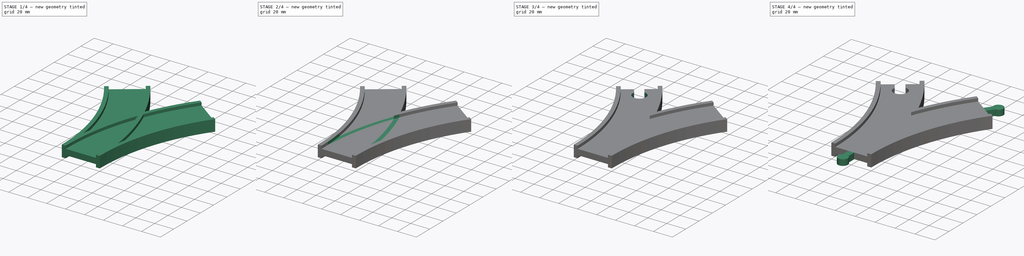
[diagram: build sequence overview — one tinted view per stage of 4, left to right]
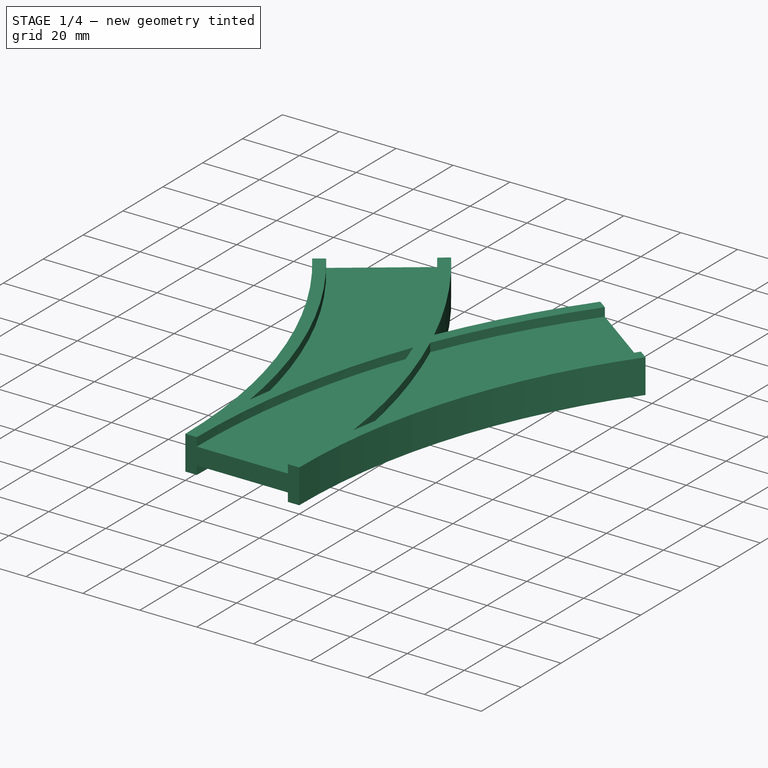
[diagram: stage 1 of 4 — iso view after this stage's code; geometry added in this stage tinted green]
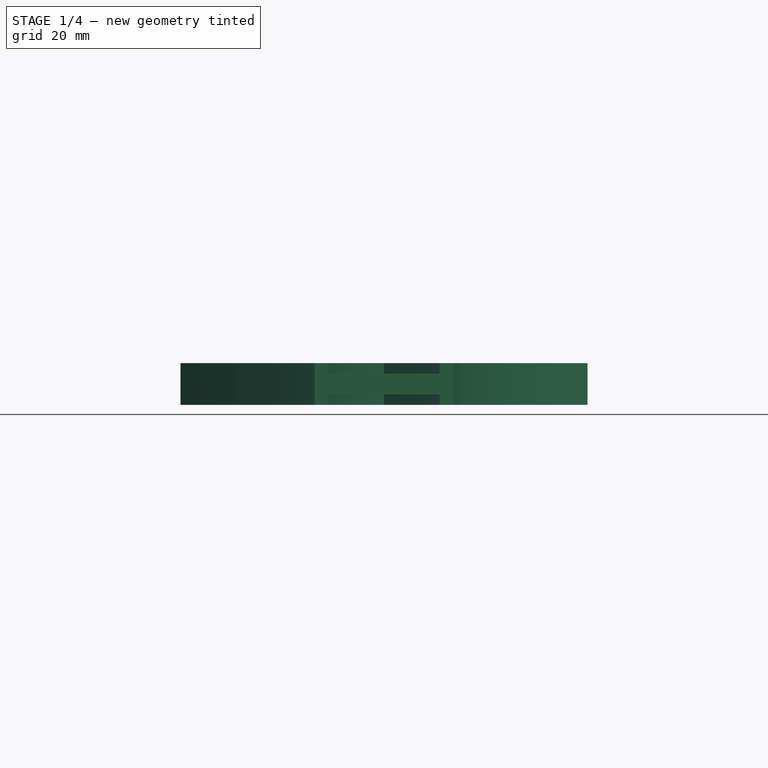
[diagram: stage 1 of 4 — front view after this stage's code; geometry added in this stage tinted green]
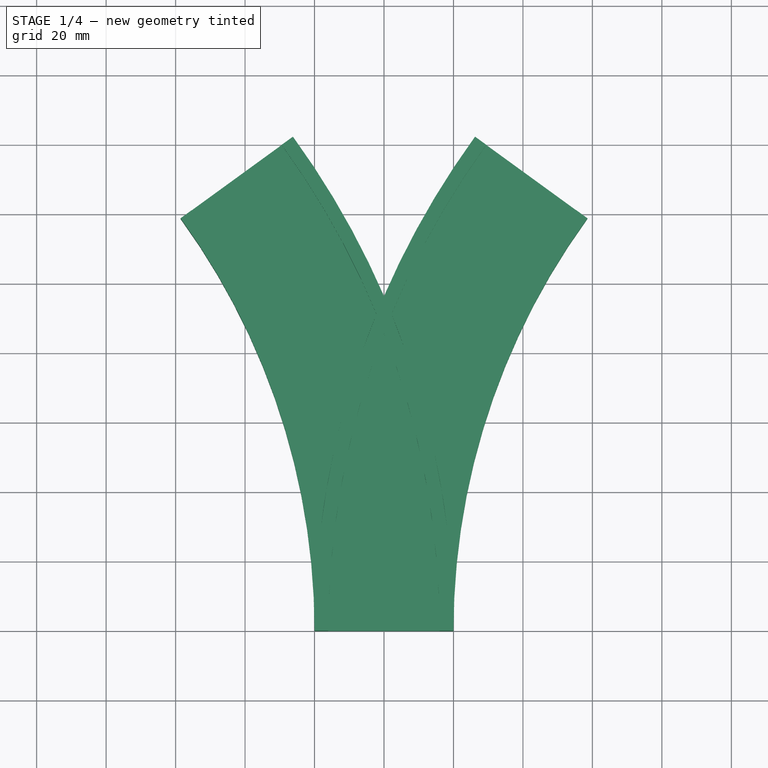
[diagram: stage 1 of 4 — top view after this stage's code; geometry added in this stage tinted green]
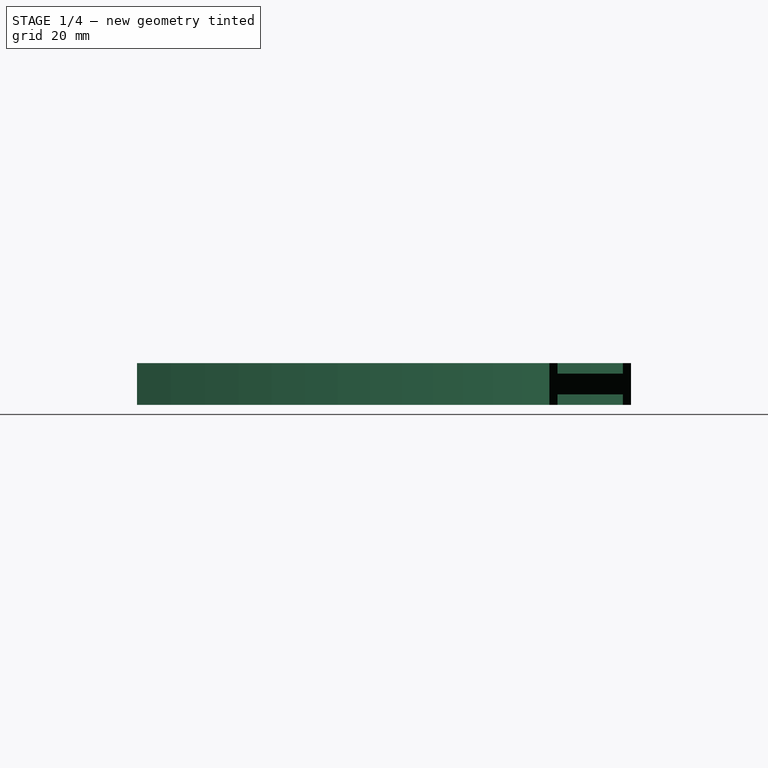
[diagram: stage 1 of 4 — right view after this stage's code; geometry added in this stage tinted green]
FCSTD DOCUMENT  (FreeCAD 0.19R24291 (Git))
Label: 222R 36 degree road split Y MFM mk1
License: All rights reserved
LicenseURL: http://en.wikipedia.org/wiki/All_rights_reserved
objects: PartDesign::ShapeBinder×8, Sketcher::SketchObject×7, PartDesign::Body×3, PartDesign::AdditivePipe×2, PartDesign::Point×2, PartDesign::Pad×2, PartDesign::SubtractivePipe×2, PartDesign::Mirrored×2, PartDesign::Pocket×1
note: 36 computed .brp shape members not serialized (recipe doc carries the construction recipe); baked Part::Feature solids carry a one-line shape summary decoded from their .brp

FEATURE [Sketcher::SketchObject] Sketch  label="guide1"
  FullyConstrained = true
  MapMode = 5
  Support = -> [XY_Plane]
  sketch-geometry (3):
    g0: ArcOfCircle CenterX=-222 CenterY=0 CenterZ=0 NormalX=0 NormalY=0 NormalZ=1 AngleXU=0 Radius=222 StartAngle=0 EndAngle=0.628319
    g1: LineSegment StartX=0 StartY=0 StartZ=0 EndX=-222 EndY=0 EndZ=0
    g2: LineSegment StartX=-222 StartY=0 StartZ=0 EndX=-42.3982 EndY=130.488 EndZ=0
  constraints (8):
    c: Radius(g0) = 222
    c: Coincident(g1,g-1)
    c: Coincident(g1,g0)
    c: Horizontal(g1)
    c: Coincident(g2,g0)
    c: Angle(g1,g2) = 0.628319
    c: Coincident(g0,g1)
    c: Coincident(g0,g2)
FEATURE [Sketcher::SketchObject] Sketch001  label="guide2"
  FullyConstrained = true
  MapMode = 5
  Support = -> [XY_Plane]
  sketch-geometry (3):
    g0: ArcOfCircle CenterX=222 CenterY=2.72e-14 CenterZ=0 NormalX=0 NormalY=0 NormalZ=1 AngleXU=0 Radius=222 StartAngle=2.51327 EndAngle=3.14159
    g1: LineSegment StartX=0 StartY=2.72e-14 StartZ=0 EndX=222 EndY=2.72e-14 EndZ=0
    g2: LineSegment StartX=222 StartY=2.72e-14 StartZ=0 EndX=42.3982 EndY=130.488 EndZ=0
  constraints (8):
    c: Radius(g0) = 222
    c: Coincident(g1,g-1)
    c: Coincident(g1,g0)
    c: Coincident(g2,g0)
    c: Horizontal(g1)
    c: Angle(g2,g1) = 0.628319
    c: Coincident(g0,g2)
    c: Coincident(g0,g1)
FEATURE [Sketcher::SketchObject] Sketch002  label="profile"
  FullyConstrained = true
  MapMode = 5
  Placement = pos=(0,0,0) rot=(1,0,0;1.5708rad)
  Support = -> [XZ_Plane]
  sketch-geometry (28):
    g0: LineSegment StartX=-20 StartY=6 StartZ=0 EndX=-20 EndY=-6 EndZ=0
    g1: LineSegment StartX=-20 StartY=-6 StartZ=0 EndX=-16 EndY=-6 EndZ=0
    g2: LineSegment StartX=-16 StartY=-6 StartZ=0 EndX=-16 EndY=-3 EndZ=0
    g3: LineSegment StartX=-16 StartY=-3 StartZ=0 EndX=-9 EndY=-3 EndZ=0
    g4: LineSegment StartX=-9 StartY=-3 StartZ=0 EndX=-9 EndY=-6 EndZ=0
    g5: LineSegment StartX=-9 StartY=-6 StartZ=0 EndX=9 EndY=-6 EndZ=0
    g6: LineSegment StartX=9 StartY=-6 StartZ=0 EndX=9 EndY=-3 EndZ=0
    g7: LineSegment StartX=9 StartY=-3 StartZ=0 EndX=16 EndY=-3 EndZ=0
    g8: LineSegment StartX=16 StartY=-3 StartZ=0 EndX=16 EndY=-6 EndZ=0
    g9: LineSegment StartX=16 StartY=-6 StartZ=0 EndX=20 EndY=-6 EndZ=0
    g10: LineSegment StartX=20 StartY=-6 StartZ=0 EndX=20 EndY=6 EndZ=0
    g11: LineSegment StartX=20 StartY=6 StartZ=0 EndX=16 EndY=6 EndZ=0
    g12: LineSegment StartX=16 StartY=6 StartZ=0 EndX=16 EndY=3 EndZ=0
    g13: LineSegment StartX=16 StartY=3 StartZ=0 EndX=9 EndY=3 EndZ=0
    g14: LineSegment StartX=9 StartY=3 StartZ=0 EndX=9 EndY=6 EndZ=0
    g15: LineSegment StartX=9 StartY=6 StartZ=0 EndX=-9 EndY=6 EndZ=0
    g16: LineSegment StartX=-9 StartY=6 StartZ=0 EndX=-9 EndY=3 EndZ=0
    g17: LineSegment StartX=-9 StartY=3 StartZ=0 EndX=-16 EndY=3 EndZ=0
    g18: LineSegment StartX=-16 StartY=3 StartZ=0 EndX=-16 EndY=6 EndZ=0
    g19: LineSegment StartX=-16 StartY=6 StartZ=0 EndX=-20 EndY=6 EndZ=0
    g20: LineSegment StartX=9 StartY=6 StartZ=0 EndX=16 EndY=6 EndZ=0
    g21: LineSegment StartX=-9 StartY=6 StartZ=0 EndX=-16 EndY=6 EndZ=0
    g22: LineSegment StartX=-16 StartY=-6 StartZ=0 EndX=-9 EndY=-6 EndZ=0
    g23: LineSegment StartX=16 StartY=-3 StartZ=0 EndX=16 EndY=3 EndZ=0
    g24: LineSegment StartX=-9 StartY=3 StartZ=0 EndX=9 EndY=3 EndZ=0
    g25: LineSegment StartX=-9 StartY=-3 StartZ=0 EndX=9 EndY=-3 EndZ=0
    g26: LineSegment StartX=-20 StartY=6 StartZ=0 EndX=20 EndY=-6 EndZ=0
    g27: LineSegment StartX=-20 StartY=-6 StartZ=0 EndX=20 EndY=6 EndZ=0
  constraints (76):
    c: Coincident(g1,g0)
    c: Horizontal(g1)
    c: Coincident(g2,g1)
    c: Vertical(g2)
    c: Coincident(g3,g2)
    c: Horizontal(g3)
    c: Coincident(g4,g3)
    c: Coincident(g5,g4)
    c: Horizontal(g5)
    c: Coincident(g6,g5)
    c: Coincident(g7,g6)
    c: Horizontal(g7)
    c: Coincident(g8,g7)
    c: Coincident(g9,g8)
    c: Coincident(g10,g9)
    c: Coincident(g11,g10)
    c: Coincident(g12,g11)
    c: Coincident(g13,g12)
    c: Coincident(g14,g13)
    c: Vertical(g14)
    c: Coincident(g15,g14)
    c: Coincident(g16,g15)
    c: Coincident(g17,g16)
    c: Horizontal(g17)
    c: Coincident(g18,g17)
    c: Vertical(g18)
    c: Coincident(g19,g18)
    c: Coincident(g19,g0)
    c: Horizontal(g19)
    c: Horizontal(g15)
    c: Horizontal(g13)
    c: Horizontal(g11)
    c: Horizontal(g9)
    c: Vertical(g0)
    c: Vertical(g16)
    c: Vertical(g12)
    c: Vertical(g10)
    c: Vertical(g8)
    c: Vertical(g6)
    c: Vertical(g4)
    c: Equal(g0,g10)
    c: Equal(g3,g17)
    c: Equal(g3,g13)
    c: Equal(g3,g7)
    c: Equal(g5,g15)
    c: DistanceY(g0,g0) = 12
    c: DistanceX(g1,g1) = 4
    c: Equal(g1,g9)
    c: DistanceX(g3,g3) = 7
    c: DistanceX(g5,g5) = 18
    c: Coincident(g20,g14)
    c: Coincident(g20,g11)
    c: Coincident(g21,g15)
    c: Coincident(g21,g18)
    c: Coincident(g22,g1)
    c: Coincident(g22,g4)
    c: Horizontal(g22)
    c: Horizontal(g21)
    c: Horizontal(g20)
    c: Coincident(g23,g7)
    c: Coincident(g23,g12)
    c: Vertical(g23)
    c: DistanceY(g8,g7) = 3
    c: DistanceY(g7,g12) = 6
    c: Coincident(g24,g16)
    c: Coincident(g24,g13)
    c: Horizontal(g24)
    c: Coincident(g25,g3)
    c: Coincident(g25,g6)
    c: Horizontal(g25)
    c: Coincident(g26,g0)
    c: Coincident(g26,g9)
    c: Coincident(g27,g0)
    c: Coincident(g27,g10)
    c: PointOnObject(g-1,g26)
    c: PointOnObject(g-1,g27)
FEATURE [PartDesign::AdditivePipe] AdditivePipe
  AuxilleryCurvelinear = true
  AuxillerySpineTangent = false
  Binormal = (0,0,0)
  Mode = 0
  Placement = pos=(0,0,0) rot=(1,0,0;1.5708rad)
  Profile = -> Sketch002
  Spine = -> Sketch
  SpineTangent = false
  Transformation = 0
  Transition = 0
FEATURE [PartDesign::AdditivePipe] AdditivePipe001
  AuxilleryCurvelinear = true
  AuxillerySpineTangent = false
  BaseFeature = -> AdditivePipe
  Binormal = (0,0,0)
  Mode = 0
  Placement = pos=(0,0,0) rot=(1,0,0;1.5708rad)
  Profile = -> Sketch002
  Spine = -> Sketch001
  SpineTangent = false
  Transformation = 0
  Transition = 0
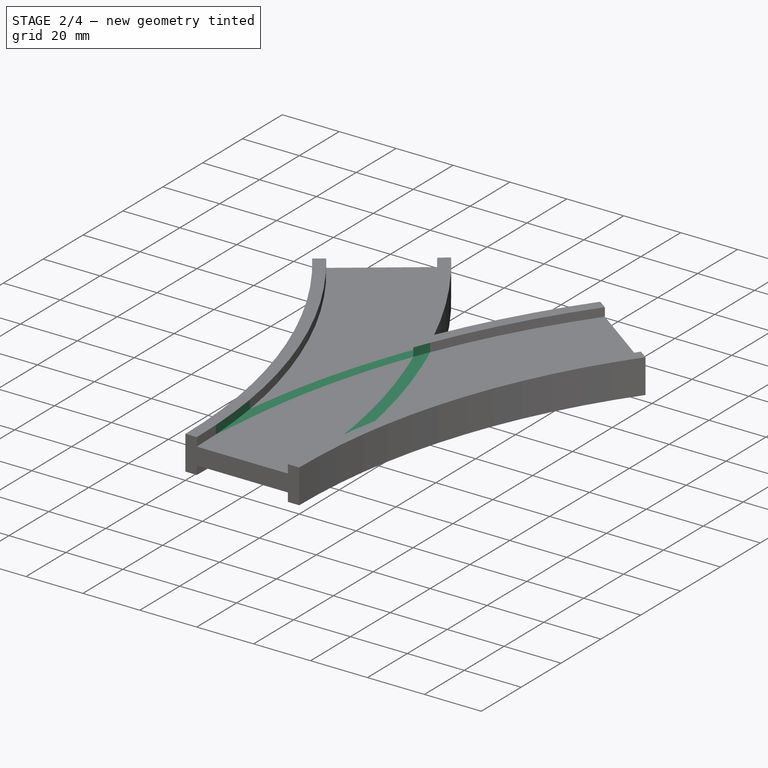
[diagram: stage 2 of 4 — iso view after this stage's code; geometry added in this stage tinted green]
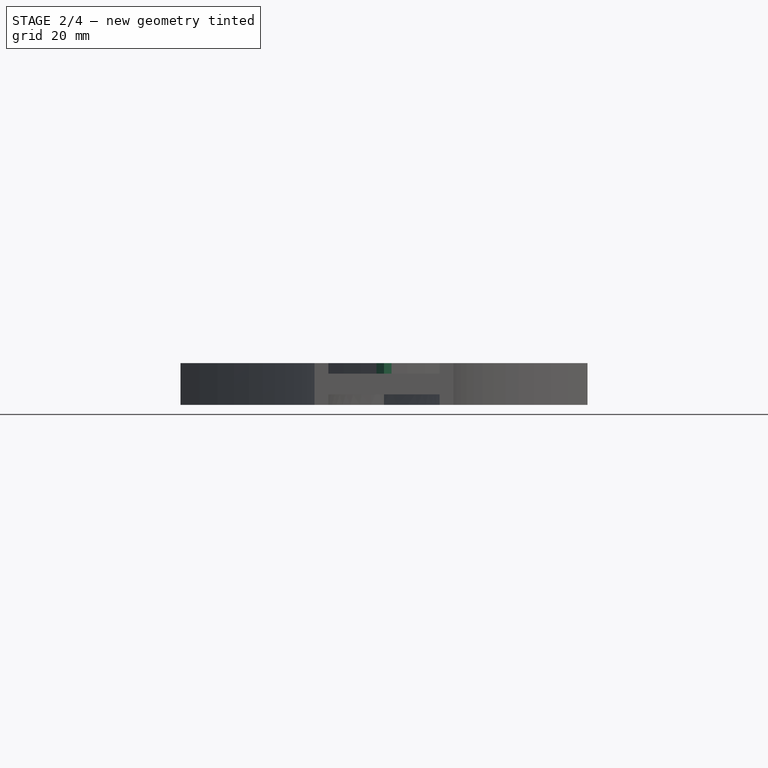
[diagram: stage 2 of 4 — front view after this stage's code; geometry added in this stage tinted green]
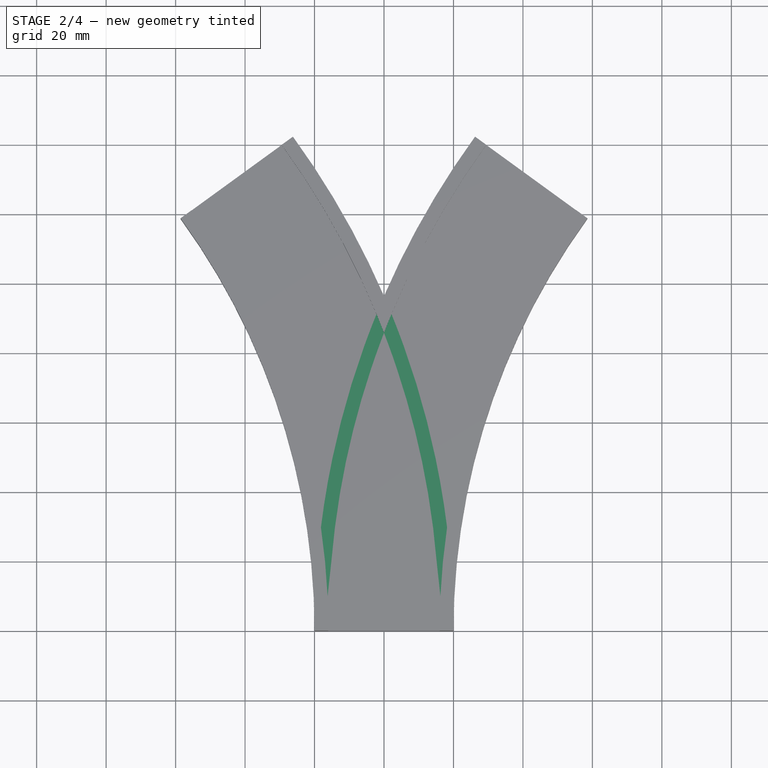
[diagram: stage 2 of 4 — top view after this stage's code; geometry added in this stage tinted green]
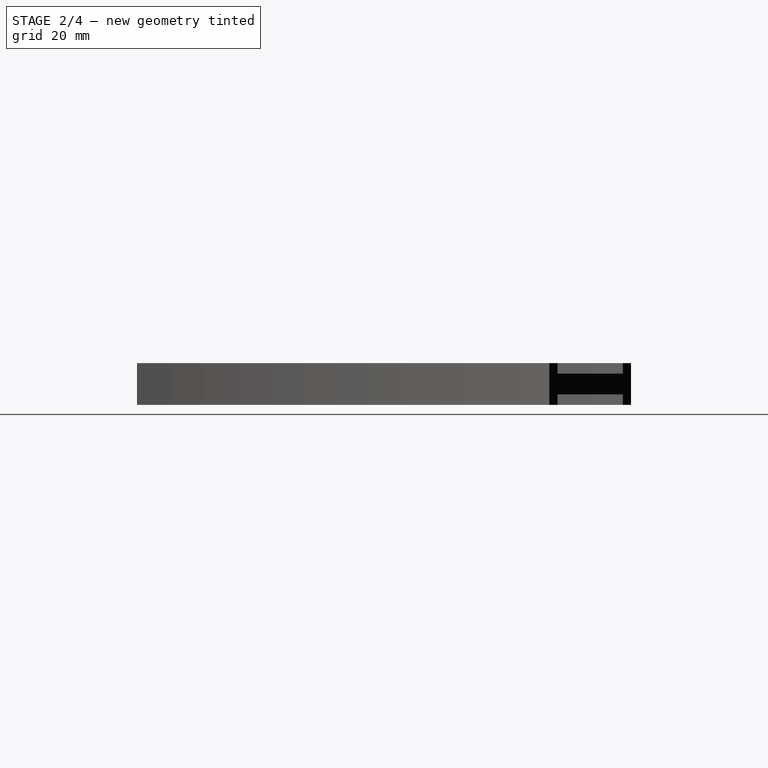
[diagram: stage 2 of 4 — right view after this stage's code; geometry added in this stage tinted green]
FEATURE [PartDesign::Body] Body002  label="male3"
  Group = -> [DatumPoint001,CopySubtractivePipe007004,CopySubtractivePipe007005,CopySubtractivePipe007006,CopySubtractivePipe007007,Sketch011,Pad001]
  Origin = -> Origin002
  Tip = -> Pad001
FEATURE [Sketcher::SketchObject] Sketch013  label="road cut top"
  ExternalGeometry = -> [AdditivePipe001]
  FullyConstrained = true
  MapMode = 5
  Placement = pos=(0,0,0) rot=(1,0,0;1.5708rad)
  Support = -> [AdditivePipe001]
  sketch-geometry (4):
    g0: LineSegment StartX=-16 StartY=3 StartZ=0 EndX=16 EndY=3 EndZ=0
    g1: LineSegment StartX=16 StartY=3 StartZ=0 EndX=16 EndY=6 EndZ=0
    g2: LineSegment StartX=16 StartY=6 StartZ=0 EndX=-16 EndY=6 EndZ=0
    g3: LineSegment StartX=-16 StartY=6 StartZ=0 EndX=-16 EndY=3 EndZ=0
  constraints (8):
    c: Coincident(g0,g-3)
    c: Coincident(g0,g-4)
    c: Coincident(g1,g0)
    c: Coincident(g1,g-4)
    c: Coincident(g2,g1)
    c: Coincident(g2,g-3)
    c: Coincident(g3,g2)
    c: Coincident(g3,g0)
FEATURE [PartDesign::SubtractivePipe] SubtractivePipe
  AuxilleryCurvelinear = true
  AuxillerySpineTangent = false
  BaseFeature = -> AdditivePipe001
  Binormal = (0,0,0)
  Mode = 0
  Placement = pos=(0,0,0) rot=(1,0,0;1.5708rad)
  Profile = -> Sketch013
  Spine = -> Sketch
  SpineTangent = false
  Transformation = 0
  Transition = 0
FEATURE [PartDesign::SubtractivePipe] SubtractivePipe001
  AuxilleryCurvelinear = true
  AuxillerySpineTangent = false
  BaseFeature = -> SubtractivePipe
  Binormal = (0,0,0)
  Mode = 0
  Placement = pos=(0,0,0) rot=(1,0,0;1.5708rad)
  Profile = -> Sketch013
  Spine = -> Sketch001
  SpineTangent = false
  Transformation = 0
  Transition = 0
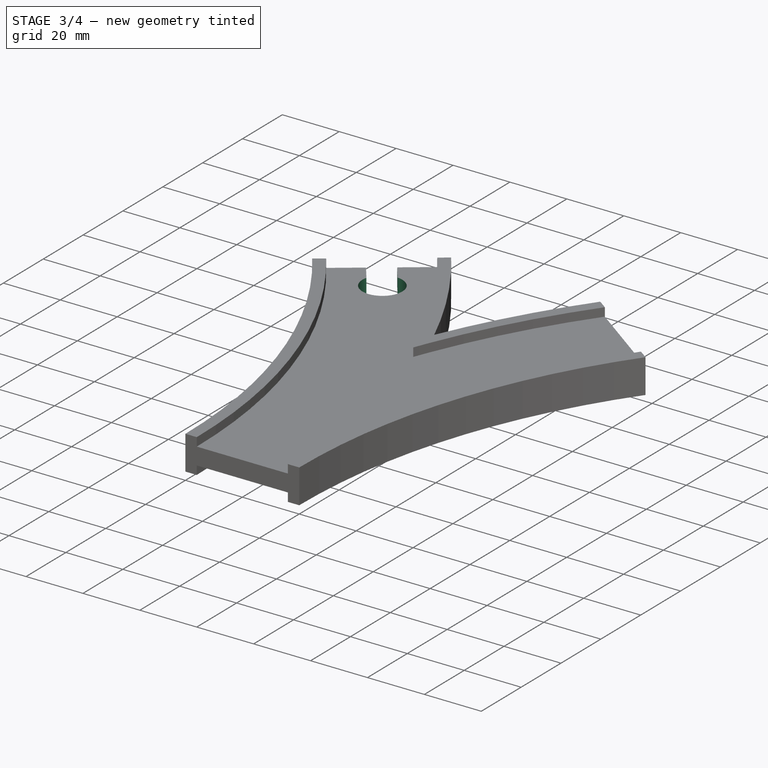
[diagram: stage 3 of 4 — iso view after this stage's code; geometry added in this stage tinted green]
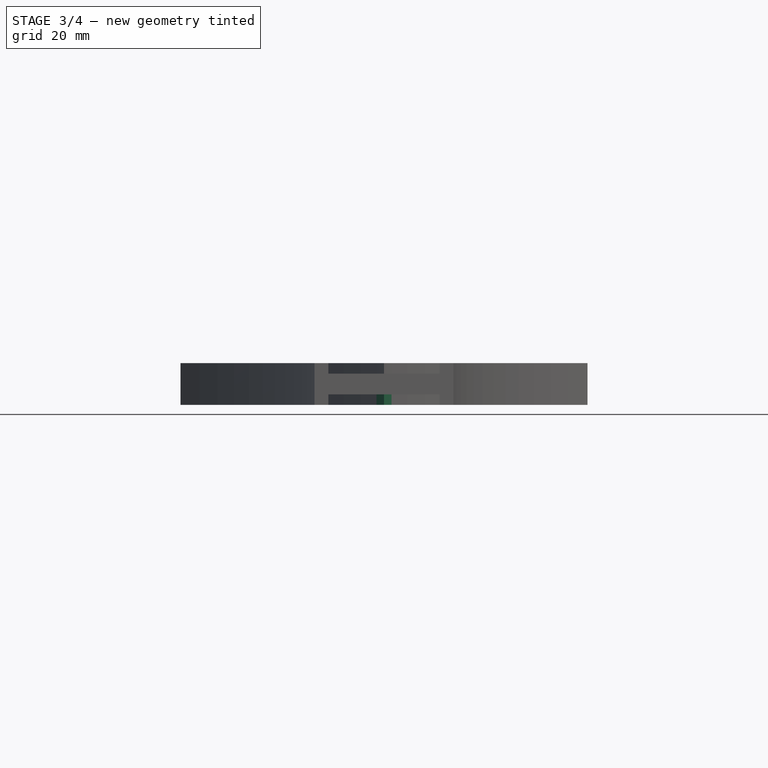
[diagram: stage 3 of 4 — front view after this stage's code; geometry added in this stage tinted green]
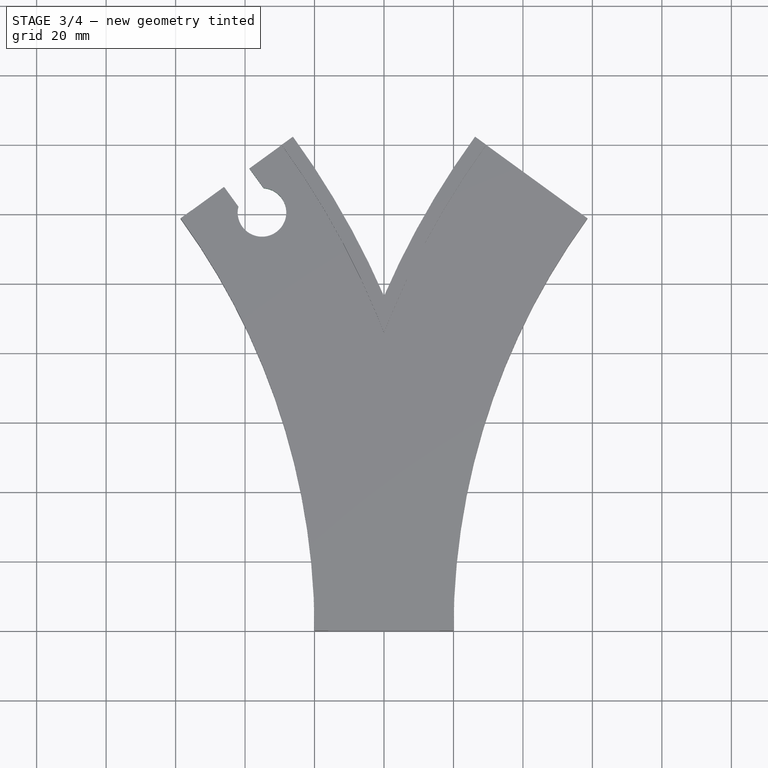
[diagram: stage 3 of 4 — top view after this stage's code; geometry added in this stage tinted green]
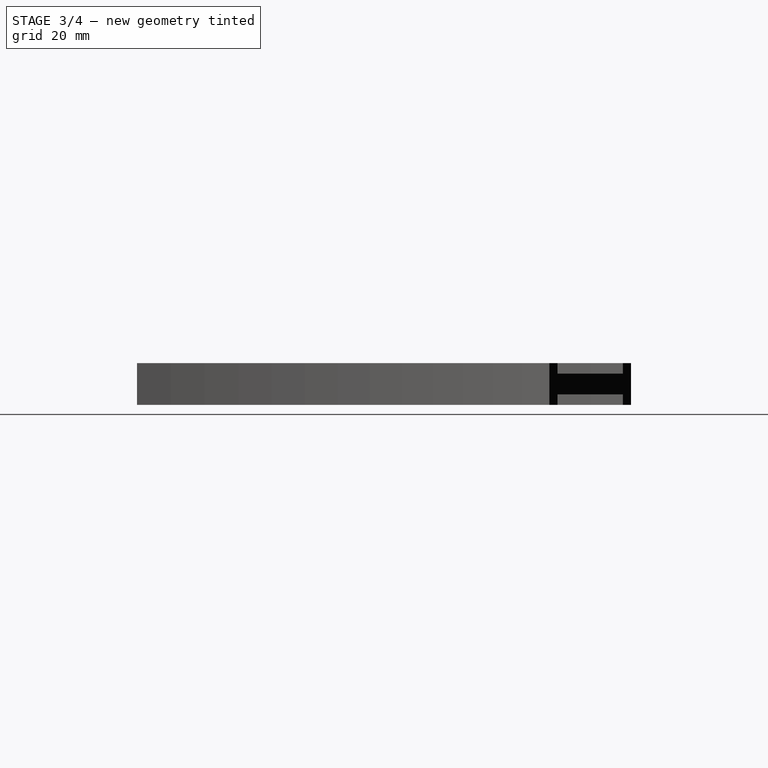
[diagram: stage 3 of 4 — right view after this stage's code; geometry added in this stage tinted green]
FEATURE [PartDesign::Mirrored] Mirrored
  BaseFeature = -> SubtractivePipe001
  MirrorPlane = -> XY_Plane
  Originals = -> [SubtractivePipe]
  Placement = pos=(0,0,0) rot=(1,0,0;1.5708rad)
FEATURE [PartDesign::Mirrored] Mirrored001
  BaseFeature = -> Mirrored
  MirrorPlane = -> XY_Plane
  Originals = -> [SubtractivePipe001]
  Placement = pos=(0,0,0) rot=(1,0,0;1.5708rad)
FEATURE [Sketcher::SketchObject] Sketch008  label="female 2"
  ExternalGeometry = -> [Mirrored001]
  FullyConstrained = true
  MapMode = 5
  Support = -> [XY_Plane]
  sketch-geometry (7):
    g0: LineSegment StartX=-58.5786 StartY=118.733 StartZ=0 EndX=-26.2179 EndY=142.244 EndZ=0
    g1: LineSegment StartX=-46.0388 StartY=127.843 StartZ=0 EndX=-38.7577 EndY=133.133 EndZ=0
    g2: LineSegment StartX=-46.0388 StartY=127.843 StartZ=0 EndX=-58.5786 EndY=118.733 EndZ=0
    g3: LineSegment StartX=-38.7577 StartY=133.133 StartZ=0 EndX=-26.2179 EndY=142.244 EndZ=0
    g4: LineSegment StartX=-46.0388 StartY=127.843 StartZ=0 EndX=-41.9243 EndY=122.18 EndZ=0
    g5: LineSegment StartX=-38.7577 StartY=133.133 StartZ=0 EndX=-34.6432 EndY=127.47 EndZ=0
    g6: ArcOfCircle CenterX=-35.1321 CenterY=120.487 CenterZ=0 NormalX=0 NormalY=0 NormalZ=1 AngleXU=0 Radius=7 StartAngle=2.89734 EndAngle=7.78408
  constraints (19):
    c: Coincident(g2,g1)
    c: Coincident(g3,g1)
    c: Distance(g1) = 9
    c: Equal(g2,g3)
    c: Coincident(g2,g0)
    c: Coincident(g3,g0)
    c: PointOnObject(g1,g0)
    c: PointOnObject(g1,g0)
    c: Coincident(g4,g1)
    c: Coincident(g5,g1)
    c: Equal(g4,g5)
    c: Angle(g4,g1) = 1.5708
    c: Angle(g1,g5) = 1.5708
    c: Diameter(g6) = 14
    c: Coincident(g6,g4)
    c: Coincident(g6,g5)
    c: Distance(g4) = 7
    c: Coincident(g0,g-4)
    c: Coincident(g0,g-3)
FEATURE [PartDesign::Pocket] Pocket
  BaseFeature = -> Mirrored001
  Length = 5
  Length2 = 100
  Midplane = true
  Placement = pos=(0,0,0) rot=(1,0,0;1.5708rad)
  Profile = -> Sketch008
  Type = 1
FEATURE [PartDesign::Body] Body  label="main"
  Group = -> [Sketch,Sketch001,Sketch002,AdditivePipe,AdditivePipe001,Sketch008,Sketch013,SubtractivePipe,SubtractivePipe001,Mirrored,Mirrored001,Pocket]
  Origin = -> Origin
  Tip = -> Pocket
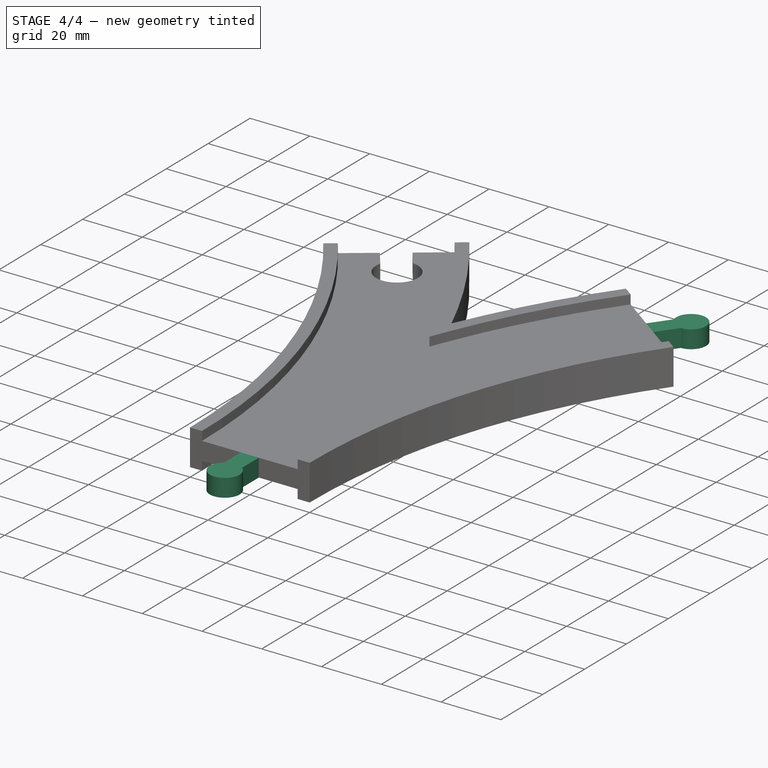
[diagram: stage 4 of 4 — iso view after this stage's code; geometry added in this stage tinted green]
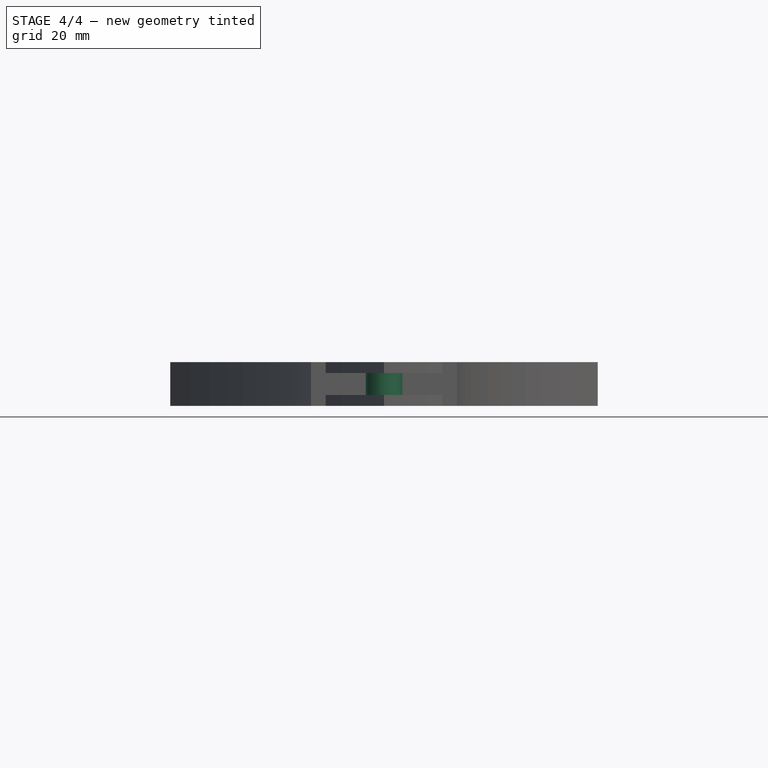
[diagram: stage 4 of 4 — front view after this stage's code; geometry added in this stage tinted green]
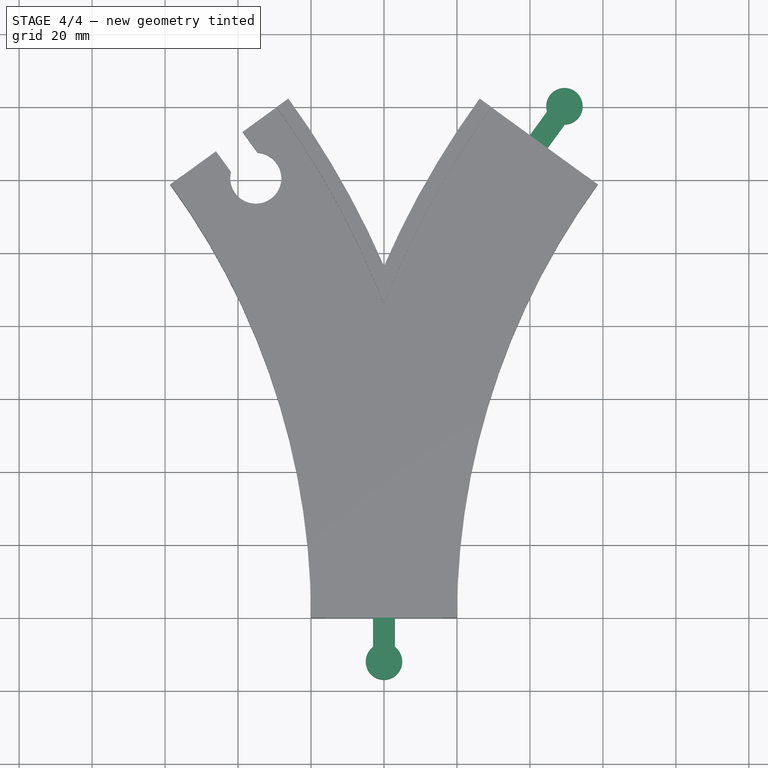
[diagram: stage 4 of 4 — top view after this stage's code; geometry added in this stage tinted green]
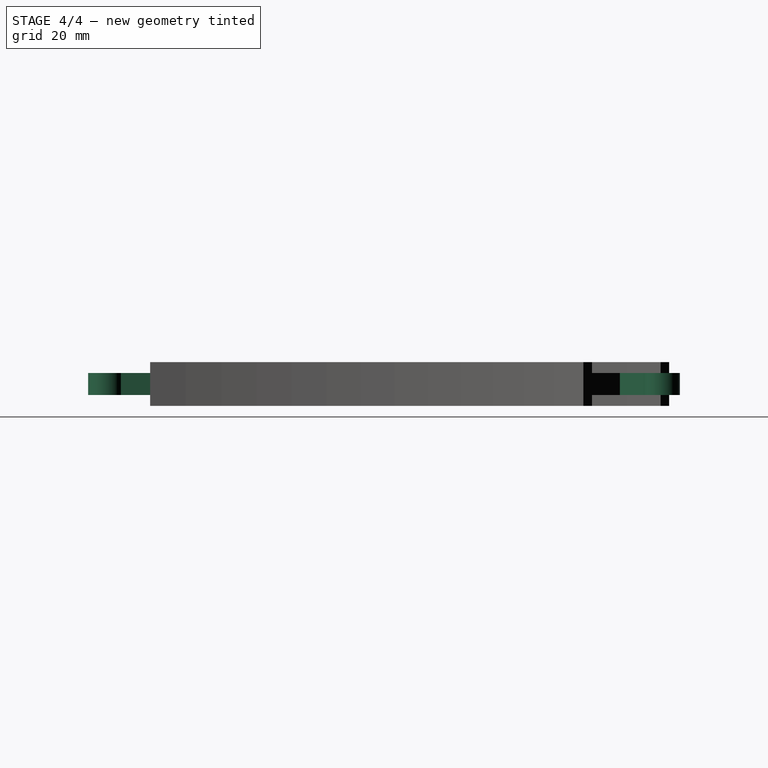
[diagram: stage 4 of 4 — right view after this stage's code; geometry added in this stage tinted green]
FEATURE [PartDesign::ShapeBinder] CopySubtractivePipe007
  Placement = pos=(0,0,0) rot=(1,0,0;1.5708rad)
  TraceSupport = false
FEATURE [PartDesign::ShapeBinder] CopySubtractivePipe007001
  Placement = pos=(0,0,0) rot=(1,0,0;1.5708rad)
  TraceSupport = false
FEATURE [PartDesign::ShapeBinder] CopySubtractivePipe007002
  Placement = pos=(0,0,0) rot=(1,0,0;1.5708rad)
  TraceSupport = false
FEATURE [PartDesign::ShapeBinder] CopySubtractivePipe007003
  Placement = pos=(0,0,0) rot=(1,0,0;1.5708rad)
  TraceSupport = false
FEATURE [PartDesign::Point] DatumPoint
  AttacherType = Attacher::AttachEnginePoint
  MapMode = 37
  Placement = pos=(9e-16,0,0) rot=(0,0,1;0rad)
  Support = -> [CopySubtractivePipe007,CopySubtractivePipe007001,CopySubtractivePipe007002,CopySubtractivePipe007003]
FEATURE [Sketcher::SketchObject] Sketch010
  ExternalGeometry = -> [CopySubtractivePipe007003]
  FullyConstrained = true
  MapMode = 5
  Support = -> [XY_Plane001]
  sketch-geometry (4):
    g0: LineSegment StartX=-3 StartY=4e-15 StartZ=0 EndX=3 EndY=4e-15 EndZ=0
    g1: LineSegment StartX=-3 StartY=4e-15 StartZ=0 EndX=-3 EndY=-8 EndZ=0
    g2: LineSegment StartX=3 StartY=4e-15 StartZ=0 EndX=3 EndY=-8 EndZ=0
    g3: ArcOfCircle CenterX=-7e-16 CenterY=-12 CenterZ=0 NormalX=0 NormalY=0 NormalZ=1 AngleXU=0 Radius=5 StartAngle=2.2143 EndAngle=7.21048
  constraints (12):
    c: PointOnObject(g0,g-3)
    c: Coincident(g1,g0)
    c: Vertical(g1)
    c: Coincident(g2,g0)
    c: Vertical(g2)
    c: Distance(g0) = 6
    c: Distance(g1) = 8
    c: Equal(g1,g2)
    c: Symmetric(g0,g0,g-2)
    c: Diameter(g3) = 10
    c: Coincident(g3,g1)
    c: Coincident(g3,g2)
FEATURE [PartDesign::Pad] Pad
  Direction = (1,1,1)
  Length = 6
  Length2 = 100
  Midplane = true
  Profile = -> Sketch010
  Type = 0
FEATURE [PartDesign::Body] Body001  label="male1"
  Group = -> [DatumPoint,CopySubtractivePipe007,CopySubtractivePipe007001,CopySubtractivePipe007002,CopySubtractivePipe007003,Sketch010,Pad]
  Origin = -> Origin001
  Tip = -> Pad
FEATURE [PartDesign::ShapeBinder] CopySubtractivePipe007004 .. CopySubtractivePipe007007  x4 (patterned run collapsed; names and placements below)
  TraceSupport = false
  placements: all 4 at pos=(0,0,0) rot=(1,0,0;1.5708rad)
FEATURE [PartDesign::Point] DatumPoint001
  AttacherType = Attacher::AttachEnginePoint
  MapMode = 37
  Placement = pos=(42.3982,130.488,-5.78e-14) rot=(0,0,1;0rad)
  Support = -> [CopySubtractivePipe007004,CopySubtractivePipe007005,CopySubtractivePipe007006,CopySubtractivePipe007007]
FEATURE [Sketcher::SketchObject] Sketch011
  ExternalGeometry = -> [CopySubtractivePipe007006]
  FullyConstrained = true
  MapMode = 5
  Support = -> [XY_Plane002]
  sketch-geometry (6):
    g0: LineSegment StartX=39.9712 StartY=132.252 StartZ=0 EndX=44.8253 EndY=128.725 EndZ=0
    g1: LineSegment StartX=39.9712 StartY=132.252 StartZ=0 EndX=35.1171 EndY=135.778 EndZ=0
    g2: LineSegment StartX=44.8253 StartY=128.725 StartZ=0 EndX=49.6794 EndY=125.198 EndZ=0
    g3: LineSegment StartX=39.9712 StartY=132.252 StartZ=0 EndX=44.6735 EndY=138.724 EndZ=0
    g4: LineSegment StartX=44.8253 StartY=128.725 StartZ=0 EndX=49.5276 EndY=135.197 EndZ=0
    g5: ArcOfCircle CenterX=49.4517 CenterY=140.197 CenterZ=0 NormalX=0 NormalY=0 NormalZ=1 AngleXU=0 Radius=5 StartAngle=4.72757 EndAngle=9.72375
  constraints (17):
    c: Coincident(g1,g0)
    c: Coincident(g2,g0)
    c: Distance(g0) = 6
    c: Equal(g1,g2)
    c: Coincident(g1,g-3)
    c: Coincident(g-3,g2)
    c: PointOnObject(g0,g-3)
    c: PointOnObject(g0,g-3)
    c: Coincident(g3,g0)
    c: Coincident(g4,g0)
    c: Equal(g3,g4)
    c: Distance(g3) = 8
    c: Diameter(g5) = 10
    c: Angle(g0,g3) = 1.5708
    c: Angle(g4,g0) = 1.5708
    c: Coincident(g5,g4)
    c: Coincident(g5,g3)
FEATURE [PartDesign::Pad] Pad001
  Direction = (1,1,1)
  Length = 6
  Length2 = 100
  Midplane = true
  Profile = -> Sketch011
  Type = 0
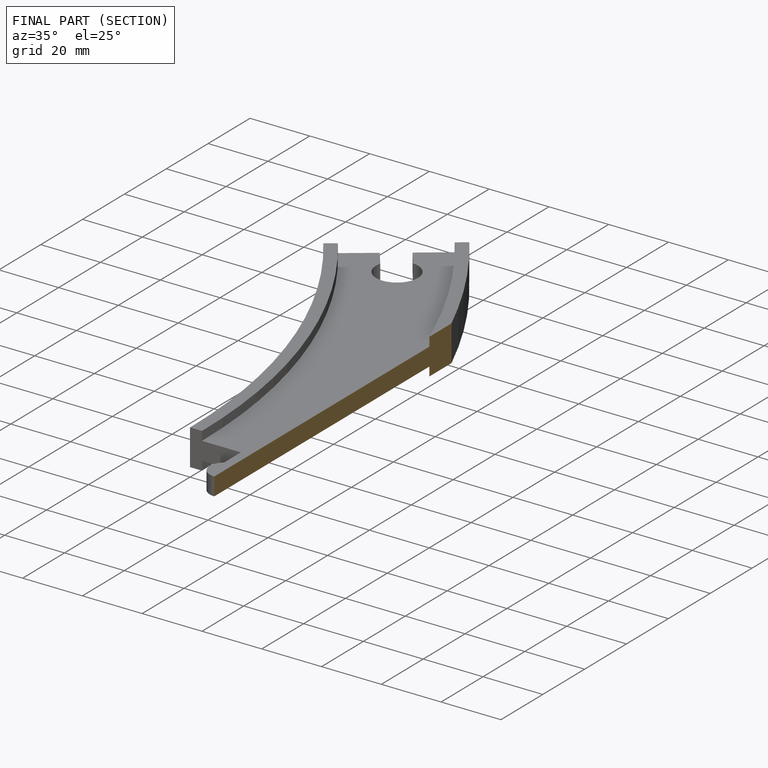
[diagram: finished part — half-section view (interior)]
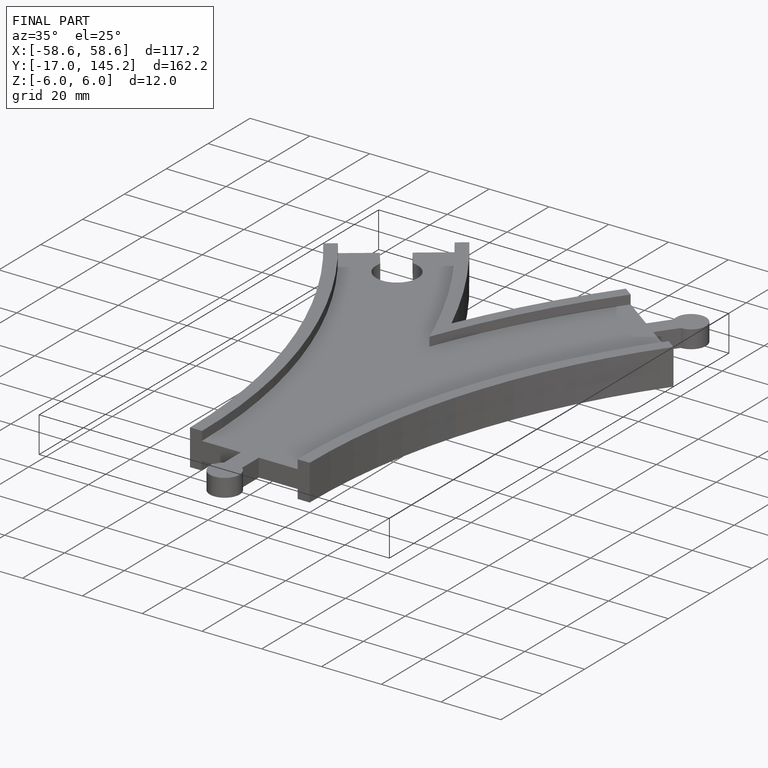
[diagram: finished part — iso view with bounding-box wireframe]
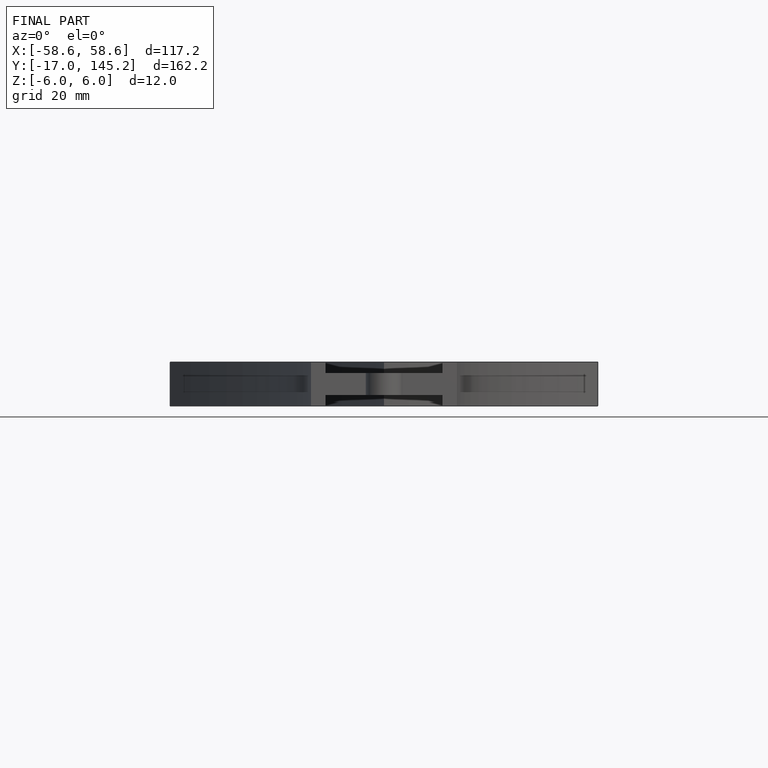
[diagram: finished part — front view with bounding-box wireframe]
